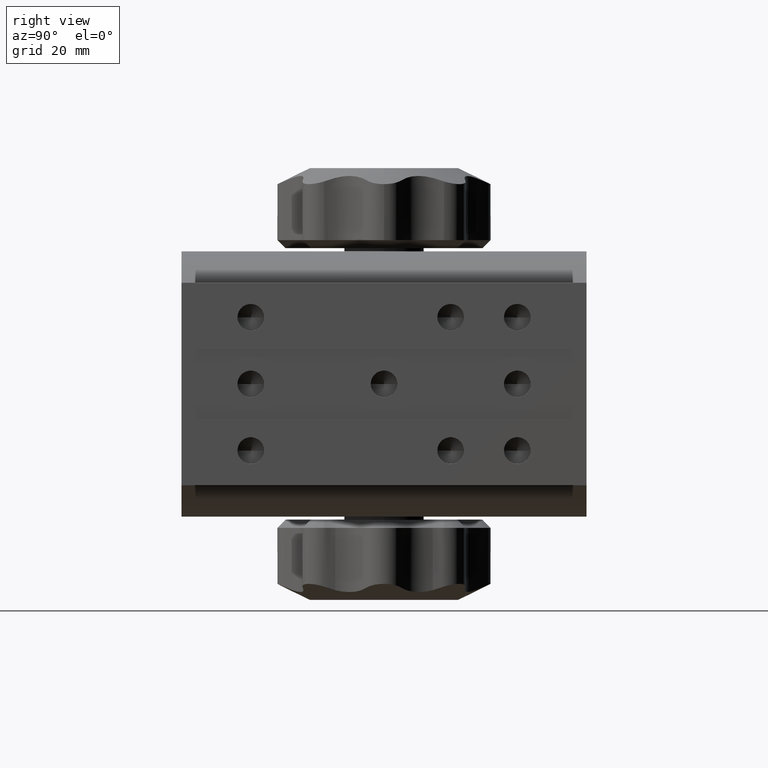
[diagram: clean part render]
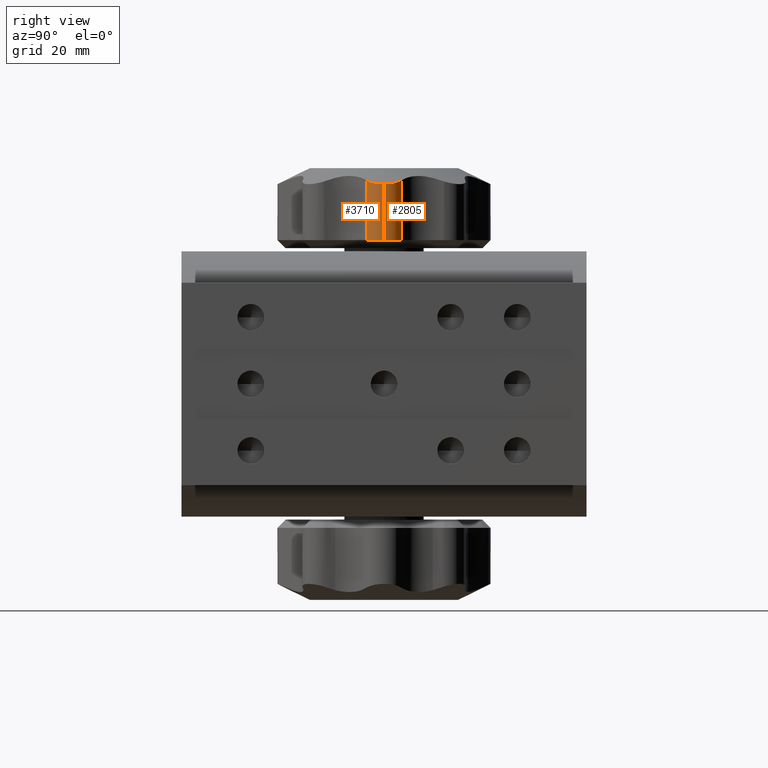
[diagram: same view with one multi-face feature highlighted, each face labeled with its STEP entity id]
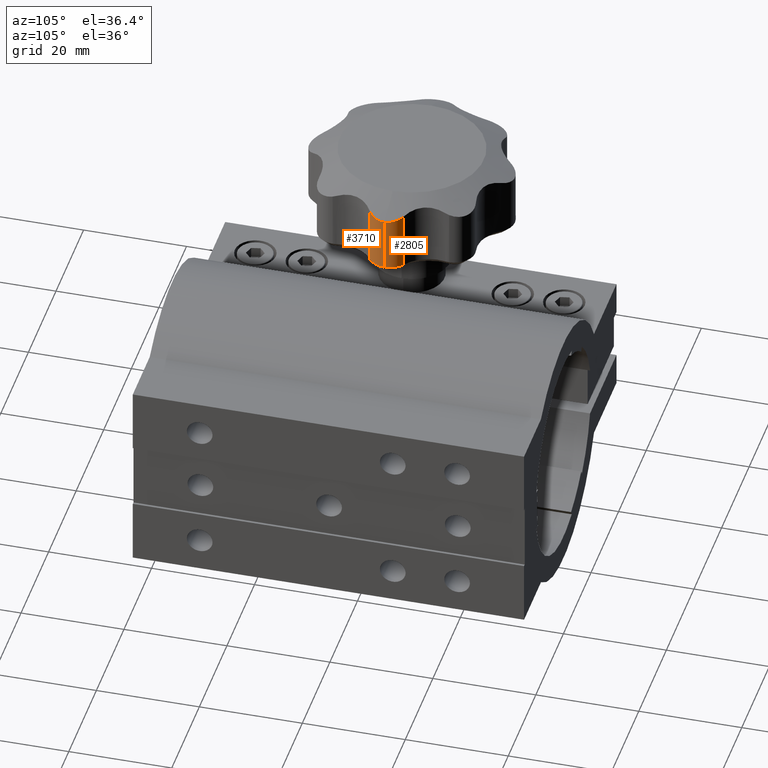
[diagram: same view with one multi-face feature highlighted, each face labeled with its STEP entity id]
A machine part, right view. The highlighted faces form ONE feature: a constant-radius fillet chain: 2 tangent blend faces with common blend radius 4 mm. The faces share edges in the B-rep.
A second angle (auxiliary view) of the same feature is appended — it is thin or edge-on in the first view.
Their STEP definitions:
[1] entity #2805 (Cylinder):
#256 = DIRECTION ( 'NONE',  ( -5.744216728366652700E-017, 1.068136628142174300E-018, -1.000000000000000000 ) ) ;
#275 = EDGE_CURVE ( 'NONE', #2780, #8355, #9851, .T. ) ;
#732 = CARTESIAN_POINT ( 'NONE',  ( -12.43301073186953200, -36.39367525027051200, 37.63407384865917700 ) ) ;
#804 = CARTESIAN_POINT ( 'NONE',  ( -12.31343870608168300, -36.70036810535550100, 37.58571358947030900 ) ) ;
#1407 = EDGE_CURVE ( 'NONE', #5241, #10764, #3546, .T. ) ;
#1707 = CARTESIAN_POINT ( 'NONE',  ( -12.65513164865497600, -35.96060845117477100, 37.72452414048564200 ) ) ;
#1774 = EDGE_CURVE ( 'NONE', #5241, #2780, #8590, .T. ) ;
#1834 = VECTOR ( 'NONE', #4557, 1000.000000000000000 ) ;
#2024 = CARTESIAN_POINT ( 'NONE',  ( -12.10000000000000300, -38.00000000000002800, 40.49999999999990800 ) ) ;
#2067 = ORIENTED_EDGE ( 'NONE', *, *, #1407, .F. ) ;
#2424 = CARTESIAN_POINT ( 'NONE',  ( -12.26273394888001700, -36.85875537139506300, 37.56529357583926300 ) ) ;
#2507 = CARTESIAN_POINT ( 'NONE',  ( -12.15151395416761000, -37.33918737790111200, 37.52062347683793300 ) ) ;
#2592 = CARTESIAN_POINT ( 'NONE',  ( -13.84647206857892200, -34.69521379476602600, 38.22485992281675500 ) ) ;
#2643 = CARTESIAN_POINT ( 'NONE',  ( -16.09999999999998000, -38.00000000000002800, 26.99999999999989300 ) ) ;
#2764 = EDGE_CURVE ( 'NONE', #10764, #8355, #6486, .T. ) ;
#2780 = VERTEX_POINT ( 'NONE', #10041 ) ;
#2805 = ADVANCED_FACE ( 'NONE', ( #5981 ), #9077, .T. ) ;
#3212 = EDGE_LOOP ( 'NONE', ( #2067, #10066, #6378, #10434 ) ) ;
#3355 = CARTESIAN_POINT ( 'NONE',  ( -13.58652559600766600, -34.87247083961992900, 38.11275532044616900 ) ) ;
#3469 = DIRECTION ( 'NONE',  ( 5.744216728366652700E-017, -1.068136628142174300E-018, 1.000000000000000000 ) ) ;
#3546 = B_SPLINE_CURVE_WITH_KNOTS ( 'NONE', 3,
 ( #5747, #5856, #7461, #2507, #7392, #2424, #804, #732, #8239, #1707, #9930, #7428, #4980, #8349, #3355, #9174 ),
 .UNSPECIFIED., .F., .F.,
 ( 4, 2, 2, 2, 2, 2, 2, 4 ),
 ( 0.003960287535763588700, 0.004454558287999381200, 0.004948829040235172900, 0.005443099792470965400, 0.005937370544706758000, 0.006431641296942549600, 0.006925912049178341300, 0.007914453553649931600 ),
 .UNSPECIFIED. ) ;
#3752 = VECTOR ( 'NONE', #5151, 1000.000000000000000 ) ;
#4185 = AXIS2_PLACEMENT_3D ( 'NONE', #6846, #256, #6890 ) ;
#4473 = CARTESIAN_POINT ( 'NONE',  ( -12.10000000000001700, -38.00000000000002800, 37.49999999999999300 ) ) ;
#4557 = DIRECTION ( 'NONE',  ( -5.744216728366652700E-017, 1.068136628142174300E-018, -1.000000000000000000 ) ) ;
#4980 = CARTESIAN_POINT ( 'NONE',  ( -13.02851694067560800, -35.43264031028016300, 37.87846908720873500 ) ) ;
#5151 = DIRECTION ( 'NONE',  ( -5.744216728366652700E-017, 1.068136628142174300E-018, -1.000000000000000000 ) ) ;
#5241 = VERTEX_POINT ( 'NONE', #4473 ) ;
#5747 = CARTESIAN_POINT ( 'NONE',  ( -12.10000000000001700, -38.00000000000002800, 37.49999999999999300 ) ) ;
#5856 = CARTESIAN_POINT ( 'NONE',  ( -12.10000000000001600, -37.83350509056443700, 37.50000000000000000 ) ) ;
#5981 = FACE_OUTER_BOUND ( 'NONE', #3212, .T. ) ;
#6378 = ORIENTED_EDGE ( 'NONE', *, *, #275, .T. ) ;
#6486 = LINE ( 'NONE', #9289, #3752 ) ;
#6846 = CARTESIAN_POINT ( 'NONE',  ( -16.10000000000000100, -38.00000000000002800, 40.49999999999990800 ) ) ;
#6890 = DIRECTION ( 'NONE',  ( 1.000000000000000000, 0.0000000000000000000, 0.0000000000000000000 ) ) ;
#7392 = CARTESIAN_POINT ( 'NONE',  ( -12.18199555004972200, -37.17763075229710500, 37.53283897366441100 ) ) ;
#7428 = CARTESIAN_POINT ( 'NONE',  ( -12.92700158500892500, -35.55904693091233800, 37.83638424736696500 ) ) ;
#7461 = CARTESIAN_POINT ( 'NONE',  ( -12.11050873953516100, -37.66657105954498500, 37.50420100701810400 ) ) ;
#8239 = CARTESIAN_POINT ( 'NONE',  ( -12.50151586287641200, -36.24581991734363800, 37.66186732320727500 ) ) ;
#8349 = CARTESIAN_POINT ( 'NONE',  ( -13.34914336907245800, -35.07867091265923400, 38.01238578080710100 ) ) ;
#8355 = VERTEX_POINT ( 'NONE', #9110 ) ;
#8590 = LINE ( 'NONE', #2024, #1834 ) ;
#9077 = CYLINDRICAL_SURFACE ( 'NONE', #4185, 4.000000000000000000 ) ;
#9110 = CARTESIAN_POINT ( 'NONE',  ( -13.84647206857889400, -34.69521379476602600, 26.99999999999989300 ) ) ;
#9174 = CARTESIAN_POINT ( 'NONE',  ( -13.84647206857892200, -34.69521379476602600, 38.22485992281675500 ) ) ;
#9289 = CARTESIAN_POINT ( 'NONE',  ( -13.84647206857892200, -34.69521379476602600, 40.49999999999990800 ) ) ;
#9304 = DIRECTION ( 'NONE',  ( -1.000000000000000000, 0.0000000000000000000, 0.0000000000000000000 ) ) ;
#9851 = CIRCLE ( 'NONE', #10111, 4.000000000000000000 ) ;
#9930 = CARTESIAN_POINT ( 'NONE',  ( -12.74024568565804600, -35.82325431566177800, 37.75938828361666600 ) ) ;
#10041 = CARTESIAN_POINT ( 'NONE',  ( -12.09999999999999300, -38.00000000000002800, 26.99999999999989300 ) ) ;
#10066 = ORIENTED_EDGE ( 'NONE', *, *, #1774, .T. ) ;
#10111 = AXIS2_PLACEMENT_3D ( 'NONE', #2643, #3469, #9304 ) ;
#10434 = ORIENTED_EDGE ( 'NONE', *, *, #2764, .F. ) ;
#10764 = VERTEX_POINT ( 'NONE', #2592 ) ;
[2] entity #3710 (Cylinder):
#716 = CARTESIAN_POINT ( 'NONE',  ( -12.10000000000001700, -38.00000000000002800, 37.49999999999999300 ) ) ;
#1083 = LINE ( 'NONE', #7738, #3672 ) ;
#1232 = CARTESIAN_POINT ( 'NONE',  ( -13.34860991247549200, -40.92084771011151600, 38.01216060073312500 ) ) ;
#1345 = CARTESIAN_POINT ( 'NONE',  ( -13.58618007707076800, -41.12729355162102300, 38.11260631183435500 ) ) ;
#1435 = DIRECTION ( 'NONE',  ( -1.000000000000000000, 0.0000000000000000000, 0.0000000000000000000 ) ) ;
#1649 = CIRCLE ( 'NONE', #4705, 4.000000000000000000 ) ;
#1774 = EDGE_CURVE ( 'NONE', #5241, #2780, #8590, .T. ) ;
#1834 = VECTOR ( 'NONE', #4557, 1000.000000000000000 ) ;
#2024 = CARTESIAN_POINT ( 'NONE',  ( -12.10000000000000300, -38.00000000000002800, 40.49999999999990800 ) ) ;
#2163 = CARTESIAN_POINT ( 'NONE',  ( -12.73095924099771600, -40.18043106480286800, 37.75545086922186000 ) ) ;
#2442 = CARTESIAN_POINT ( 'NONE',  ( -16.10000000000000100, -38.00000000000002800, 40.49999999999990800 ) ) ;
#2780 = VERTEX_POINT ( 'NONE', #10041 ) ;
#3002 = EDGE_CURVE ( 'NONE', #3610, #5241, #10457, .T. ) ;
#3022 = CARTESIAN_POINT ( 'NONE',  ( -13.84647206857438400, -41.30478620523091800, 38.22485992281480800 ) ) ;
#3131 = CARTESIAN_POINT ( 'NONE',  ( -12.10000000000000900, -38.33348397388260100, 37.49999999999997900 ) ) ;
#3340 = VERTEX_POINT ( 'NONE', #8271 ) ;
#3610 = VERTEX_POINT ( 'NONE', #3022 ) ;
#3672 = VECTOR ( 'NONE', #5281, 1000.000000000000000 ) ;
#3710 = ADVANCED_FACE ( 'NONE', ( #5473 ), #9630, .T. ) ;
#3860 = CARTESIAN_POINT ( 'NONE',  ( -12.31359701654338000, -39.30000959330679000, 37.58577770716814100 ) ) ;
#4079 = ORIENTED_EDGE ( 'NONE', *, *, #3002, .F. ) ;
#4134 = DIRECTION ( 'NONE',  ( 1.000000000000000000, 0.0000000000000000000, 0.0000000000000000000 ) ) ;
#4473 = CARTESIAN_POINT ( 'NONE',  ( -12.10000000000001700, -38.00000000000002800, 37.49999999999999300 ) ) ;
#4501 = ORIENTED_EDGE ( 'NONE', *, *, #7985, .T. ) ;
#4557 = DIRECTION ( 'NONE',  ( -5.744216728366652700E-017, 1.068136628142174300E-018, -1.000000000000000000 ) ) ;
#4660 = CARTESIAN_POINT ( 'NONE',  ( -12.43266998980681000, -39.60547908493237700, 37.63393594762447200 ) ) ;
#4705 = AXIS2_PLACEMENT_3D ( 'NONE', #4799, #5611, #1435 ) ;
#4799 = CARTESIAN_POINT ( 'NONE',  ( -16.09999999999998000, -38.00000000000002800, 26.99999999999989300 ) ) ;
#5241 = VERTEX_POINT ( 'NONE', #4473 ) ;
#5281 = DIRECTION ( 'NONE',  ( -5.744216728366652700E-017, 1.068136628142174300E-018, -1.000000000000000000 ) ) ;
#5473 = FACE_OUTER_BOUND ( 'NONE', #8272, .T. ) ;
#5611 = DIRECTION ( 'NONE',  ( 5.744216728366652700E-017, -1.068136628142174300E-018, 1.000000000000000000 ) ) ;
#5619 = CARTESIAN_POINT ( 'NONE',  ( -12.14106475492094900, -38.66032219999980400, 37.51638630186257500 ) ) ;
#6046 = EDGE_CURVE ( 'NONE', #3340, #2780, #1649, .T. ) ;
#6245 = CARTESIAN_POINT ( 'NONE',  ( -13.84647206857438400, -41.30478620523091800, 38.22485992281480800 ) ) ;
#6518 = CARTESIAN_POINT ( 'NONE',  ( -12.26258764679220700, -39.14086145174759000, 37.56523457982456200 ) ) ;
#6831 = ORIENTED_EDGE ( 'NONE', *, *, #6046, .T. ) ;
#6918 = AXIS2_PLACEMENT_3D ( 'NONE', #2442, #7326, #4134 ) ;
#7132 = CARTESIAN_POINT ( 'NONE',  ( -12.92095610663809200, -40.44850539788461700, 37.83354631144492000 ) ) ;
#7326 = DIRECTION ( 'NONE',  ( -5.744216728366652700E-017, 1.068136628142174300E-018, -1.000000000000000000 ) ) ;
#7738 = CARTESIAN_POINT ( 'NONE',  ( -13.84647206857438400, -41.30478620523091800, 40.49999999999990800 ) ) ;
#7980 = ORIENTED_EDGE ( 'NONE', *, *, #1774, .F. ) ;
#7985 = EDGE_CURVE ( 'NONE', #3610, #3340, #1083, .T. ) ;
#7986 = CARTESIAN_POINT ( 'NONE',  ( -12.50094550742581000, -39.75299331873385000, 37.66163561037067400 ) ) ;
#8271 = CARTESIAN_POINT ( 'NONE',  ( -13.84647206857439800, -41.30478620523091800, 26.99999999999989300 ) ) ;
#8272 = EDGE_LOOP ( 'NONE', ( #7980, #4079, #4501, #6831 ) ) ;
#8590 = LINE ( 'NONE', #2024, #1834 ) ;
#9630 = CYLINDRICAL_SURFACE ( 'NONE', #6918, 4.000000000000000000 ) ;
#10041 = CARTESIAN_POINT ( 'NONE',  ( -12.09999999999999300, -38.00000000000002800, 26.99999999999989300 ) ) ;
#10457 = B_SPLINE_CURVE_WITH_KNOTS ( 'NONE', 3,
 ( #6245, #1345, #1232, #7132, #2163, #7986, #4660, #3860, #6518, #5619, #3131, #716 ),
 .UNSPECIFIED., .F., .F.,
 ( 4, 2, 2, 2, 2, 4 ),
 ( 2.535578288699374200E-007, 0.0009902620523125451400, 0.001980270546796220400, 0.002475274794038066600, 0.002970279041279913200, 0.003960287535763588700 ),
 .UNSPECIFIED. ) ;